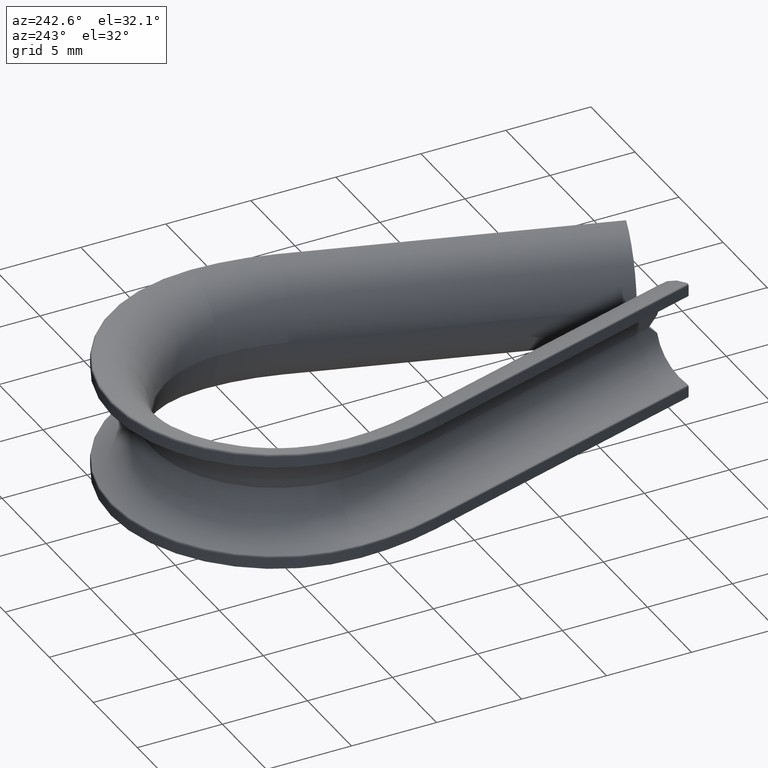
[diagram: clean part render]
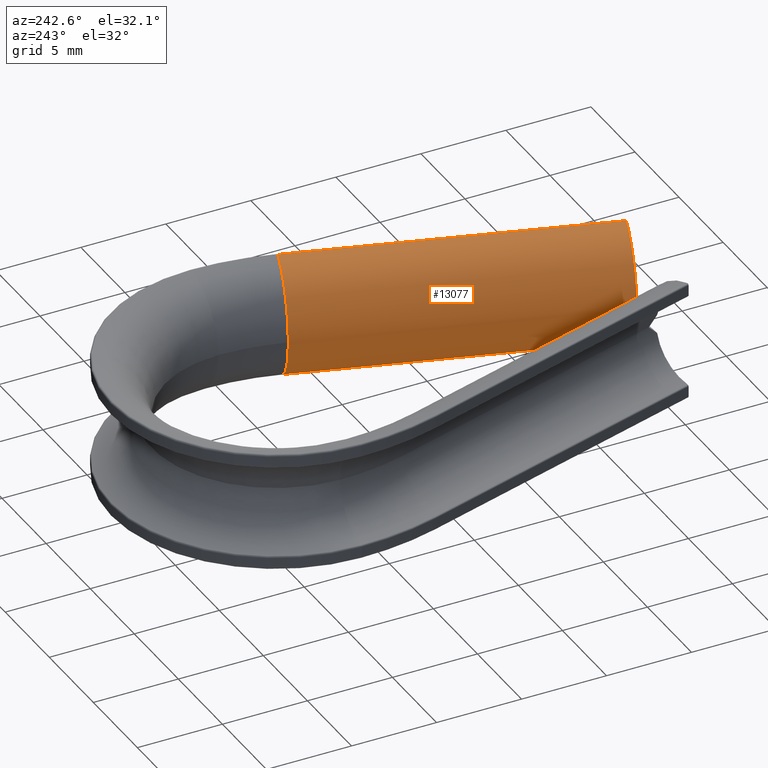
[diagram: same view with one face highlighted and labeled with its STEP entity id]
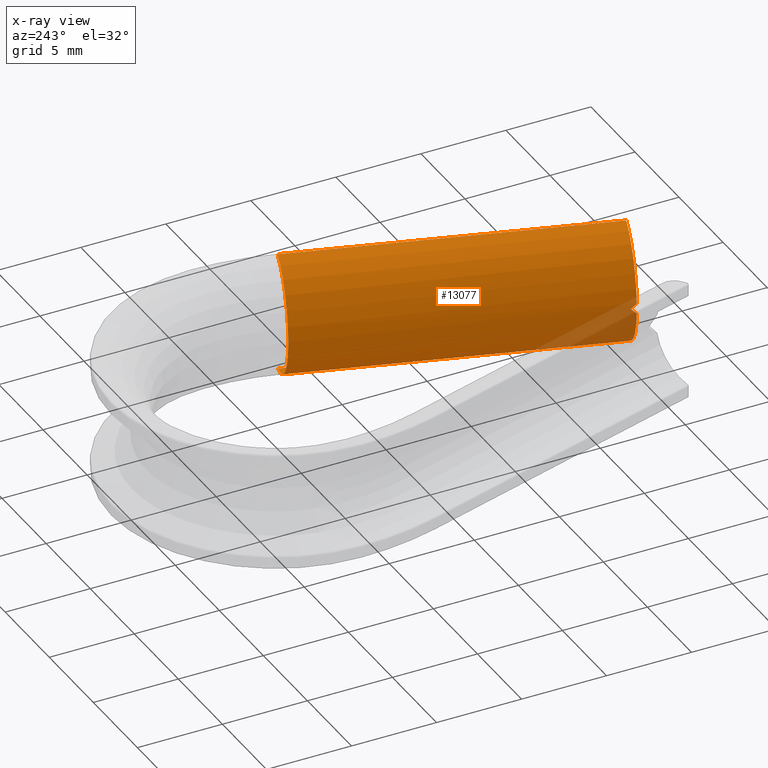
[diagram: x-ray of the same camera — body ghosted, the highlighted face saturated]
A machine part, auxiliary view. The second image highlights one B-rep face of the part: STEP entity #13077.
The next image is the same camera in x-ray: the body ghosted, the highlighted face saturated — about 5% of this face is hidden behind the body in this view.
In plain terms, the highlighted cylindrical surface (partial cylindrical patch) has radius 3.55 mm, axis along (-0.2934, -0.956, 0).
Its self-contained STEP definition (entity closure, byte-faithful):
#238 = DIRECTION ( 'NONE',  ( -0.2933985330073349800, -0.9559902200488997700, 0.0000000000000000000 ) ) ;
#283 = AXIS2_PLACEMENT_3D ( 'NONE', #7715, #11412, #6635 ) ;
#760 = CARTESIAN_POINT ( 'NONE',  ( 8.878973105134475600, 16.78011055596896400, -3.519671964436468200 ) ) ;
#834 = EDGE_CURVE ( 'NONE', #7098, #10944, #13749, .T. ) ;
#917 = ORIENTED_EDGE ( 'NONE', *, *, #8439, .F. ) ;
#1354 = AXIS2_PLACEMENT_3D ( 'NONE', #3382, #15325, #8230 ) ;
#1428 = CARTESIAN_POINT ( 'NONE',  ( 3.451100244498778800, -0.9057085149356850500, -3.519671964436468700 ) ) ;
#1545 = CARTESIAN_POINT ( 'NONE',  ( 0.5609343871658220000, 0.1985445448486324600, 0.1023664919008043700 ) ) ;
#1733 = CARTESIAN_POINT ( 'NONE',  ( 0.5920716112531951800, 0.3000000000000007700, -4.814824860968089600E-032 ) ) ;
#1795 =( BOUNDED_CURVE ( )  B_SPLINE_CURVE ( 3, ( #8747, #5196, #1545, #7406 ),
 .UNSPECIFIED., .F., .F. ) 
 B_SPLINE_CURVE_WITH_KNOTS ( ( 4, 4 ),
 ( 1.196502865462605800, 1.282982800591112600 ),
 .UNSPECIFIED. ) 
 CURVE ( )  GEOMETRIC_REPRESENTATION_ITEM ( )  RATIONAL_B_SPLINE_CURVE ( ( 1.000000000000000000, 0.9993768655000352400, 0.9993768655000352400, 1.000000000000000000 ) ) 
 REPRESENTATION_ITEM ( '' )  );
#1838 = FACE_OUTER_BOUND ( 'NONE', #4923, .T. ) ;
#2449 = VECTOR ( 'NONE', #7890, 1000.000000000000100 ) ;
#2587 = ORIENTED_EDGE ( 'NONE', *, *, #834, .T. ) ;
#2598 = DIRECTION ( 'NONE',  ( 0.9559902200488998900, -0.2933985330073348700, 0.0000000000000000000 ) ) ;
#2620 = DIRECTION ( 'NONE',  ( 0.2933985330073349800, 0.9559902200488996600, -0.0000000000000000000 ) ) ;
#2695 = CARTESIAN_POINT ( 'NONE',  ( 9.321638141809295100, 16.64425427872861000, 0.0000000000000000000 ) ) ;
#2836 = EDGE_CURVE ( 'NONE', #14586, #14643, #1795, .T. ) ;
#3025 = CARTESIAN_POINT ( 'NONE',  ( 0.5920716112531951800, 0.3000000000000007700, -4.814824860968089600E-032 ) ) ;
#3382 = CARTESIAN_POINT ( 'NONE',  ( 9.321638141809295100, 16.64425427872861000, 0.0000000000000000000 ) ) ;
#3580 = CIRCLE ( 'NONE', #283, 3.549999999999999800 ) ;
#3637 = EDGE_CURVE ( 'NONE', #10944, #5790, #15181, .T. ) ;
#3895 = VECTOR ( 'NONE', #2620, 1000.000000000000100 ) ;
#3915 = DIRECTION ( 'NONE',  ( 0.0000000000000000000, 0.0000000000000000000, -1.000000000000000000 ) ) ;
#4305 = CARTESIAN_POINT ( 'NONE',  ( 0.5126827033449742300, -0.003892389773392946500, -0.3066212438753651000 ) ) ;
#4413 = CARTESIAN_POINT ( 'NONE',  ( 5.927872860635702100, 17.68581907090465000, 4.347496136973103900E-016 ) ) ;
#4923 = EDGE_LOOP ( 'NONE', ( #8358, #917, #14005, #2587, #14299, #13411, #8499, #7670 ) ) ;
#5171 = VERTEX_POINT ( 'NONE', #4305 ) ;
#5196 = CARTESIAN_POINT ( 'NONE',  ( 0.5344549175920482200, 0.09718392028873375200, 0.2046373016624942800 ) ) ;
#5790 = VERTEX_POINT ( 'NONE', #9773 ) ;
#6173 = CARTESIAN_POINT ( 'NONE',  ( 3.893765281173597000, -1.041564792176038300, 0.0000000000000000000 ) ) ;
#6635 = DIRECTION ( 'NONE',  ( 0.0000000000000000000, 0.0000000000000000000, -1.000000000000000000 ) ) ;
#6874 = EDGE_CURVE ( 'NONE', #14643, #5171, #12656, .T. ) ;
#6898 = VERTEX_POINT ( 'NONE', #12376 ) ;
#7098 = VERTEX_POINT ( 'NONE', #11789 ) ;
#7406 = CARTESIAN_POINT ( 'NONE',  ( 0.5920716112531951800, 0.3000000000000007700, -4.814824860968089600E-032 ) ) ;
#7452 = CARTESIAN_POINT ( 'NONE',  ( 8.878973105134475600, 16.78011055596896400, 3.519671964436468200 ) ) ;
#7525 = CARTESIAN_POINT ( 'NONE',  ( 0.5344549175920482200, 0.09718392028873287800, -0.2046373016624948000 ) ) ;
#7633 = CARTESIAN_POINT ( 'NONE',  ( 0.5126827033449742300, -0.003892389773392946500, 0.3066212438753651000 ) ) ;
#7670 = ORIENTED_EDGE ( 'NONE', *, *, #6874, .F. ) ;
#7715 = CARTESIAN_POINT ( 'NONE',  ( 3.893765281173597000, -1.041564792176038300, 0.0000000000000000000 ) ) ;
#7890 = DIRECTION ( 'NONE',  ( -0.2933985330073349800, -0.9559902200488996600, 0.0000000000000000000 ) ) ;
#8230 = DIRECTION ( 'NONE',  ( 0.0000000000000000000, 0.0000000000000000000, -1.000000000000000000 ) ) ;
#8299 = AXIS2_PLACEMENT_3D ( 'NONE', #6173, #14526, #14637 ) ;
#8358 = ORIENTED_EDGE ( 'NONE', *, *, #2836, .F. ) ;
#8439 = EDGE_CURVE ( 'NONE', #6898, #14586, #11601, .T. ) ;
#8499 = ORIENTED_EDGE ( 'NONE', *, *, #9162, .F. ) ;
#8599 = DIRECTION ( 'NONE',  ( -0.2933985330073347600, -0.9559902200488998900, 0.0000000000000000000 ) ) ;
#8747 = CARTESIAN_POINT ( 'NONE',  ( 0.5126827033449742300, -0.003892389773392946500, 0.3066212438753651000 ) ) ;
#9162 = EDGE_CURVE ( 'NONE', #5171, #11132, #3580, .T. ) ;
#9773 = CARTESIAN_POINT ( 'NONE',  ( 8.878973105134406300, 16.78011055596898500, -3.519671964436449100 ) ) ;
#10013 = CYLINDRICAL_SURFACE ( 'NONE', #10434, 3.549999999999998500 ) ;
#10434 = AXIS2_PLACEMENT_3D ( 'NONE', #12068, #238, #2598 ) ;
#10791 = EDGE_CURVE ( 'NONE', #5790, #11132, #12515, .T. ) ;
#10944 = VERTEX_POINT ( 'NONE', #4413 ) ;
#11132 = VERTEX_POINT ( 'NONE', #1428 ) ;
#11271 = CARTESIAN_POINT ( 'NONE',  ( 0.5126827033449742300, -0.003892389773392946500, -0.3066212438753651000 ) ) ;
#11412 = DIRECTION ( 'NONE',  ( -0.2933985330073347600, -0.9559902200488998900, 0.0000000000000000000 ) ) ;
#11601 = CIRCLE ( 'NONE', #8299, 3.549999999999999800 ) ;
#11789 = CARTESIAN_POINT ( 'NONE',  ( 8.878973105134379700, 16.78011055596899200, 3.519671964436442000 ) ) ;
#12067 = LINE ( 'NONE', #7452, #3895 ) ;
#12068 = CARTESIAN_POINT ( 'NONE',  ( 9.321638141809295100, 16.64425427872861000, 0.0000000000000000000 ) ) ;
#12376 = CARTESIAN_POINT ( 'NONE',  ( 3.451100244498777900, -0.9057085149356848300, 3.519671964436468200 ) ) ;
#12486 = EDGE_CURVE ( 'NONE', #6898, #7098, #12067, .T. ) ;
#12515 = LINE ( 'NONE', #760, #2449 ) ;
#12533 = CARTESIAN_POINT ( 'NONE',  ( 0.5609343871658221100, 0.1985445448486317100, -0.1023664919008051300 ) ) ;
#12656 =( BOUNDED_CURVE ( )  B_SPLINE_CURVE ( 3, ( #3025, #12533, #7525, #11271 ),
 .UNSPECIFIED., .F., .F. ) 
 B_SPLINE_CURVE_WITH_KNOTS ( ( 4, 4 ),
 ( 5.000202506588474100, 5.086682441716980900 ),
 .UNSPECIFIED. ) 
 CURVE ( )  GEOMETRIC_REPRESENTATION_ITEM ( )  RATIONAL_B_SPLINE_CURVE ( ( 1.000000000000000000, 0.9993768655000352400, 0.9993768655000352400, 1.000000000000000000 ) ) 
 REPRESENTATION_ITEM ( '' )  );
#12895 = AXIS2_PLACEMENT_3D ( 'NONE', #2695, #8599, #3915 ) ;
#13077 = ADVANCED_FACE ( 'NONE', ( #1838 ), #10013, .T. ) ;
#13411 = ORIENTED_EDGE ( 'NONE', *, *, #10791, .T. ) ;
#13749 = CIRCLE ( 'NONE', #12895, 3.549999999999999800 ) ;
#14005 = ORIENTED_EDGE ( 'NONE', *, *, #12486, .T. ) ;
#14299 = ORIENTED_EDGE ( 'NONE', *, *, #3637, .T. ) ;
#14526 = DIRECTION ( 'NONE',  ( -0.2933985330073347600, -0.9559902200488998900, 0.0000000000000000000 ) ) ;
#14586 = VERTEX_POINT ( 'NONE', #7633 ) ;
#14637 = DIRECTION ( 'NONE',  ( 0.0000000000000000000, 0.0000000000000000000, -1.000000000000000000 ) ) ;
#14643 = VERTEX_POINT ( 'NONE', #1733 ) ;
#15181 = CIRCLE ( 'NONE', #1354, 3.549999999999999800 ) ;
#15325 = DIRECTION ( 'NONE',  ( -0.2933985330073347600, -0.9559902200488998900, 0.0000000000000000000 ) ) ;